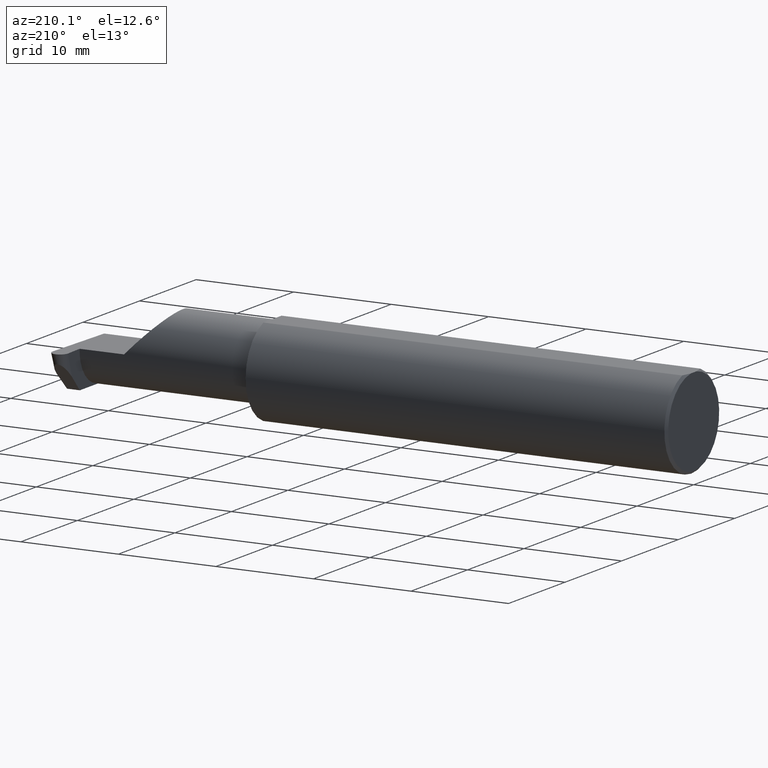
[diagram: clean part render]
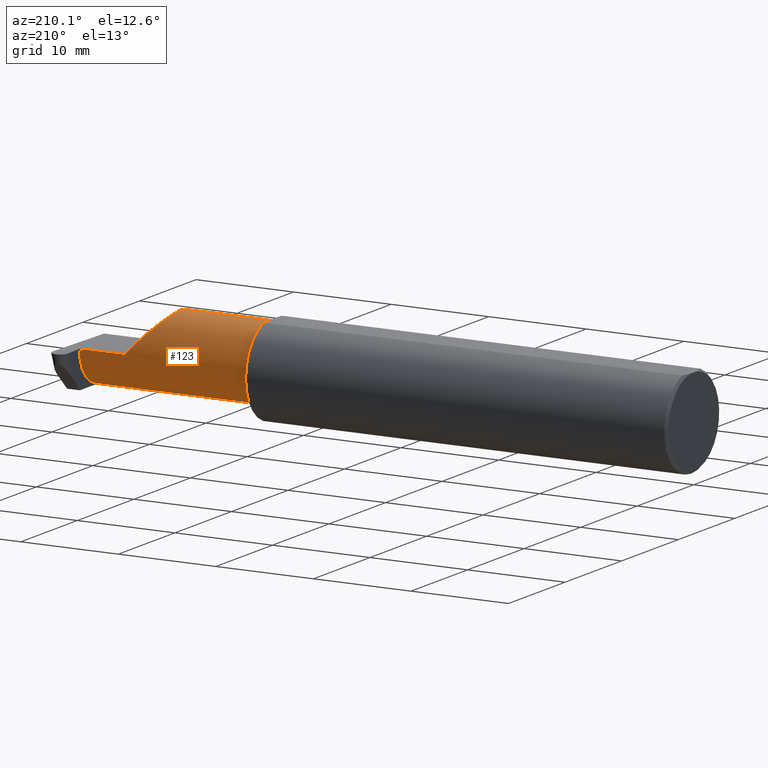
[diagram: same view with one face highlighted and labeled with its STEP entity id]
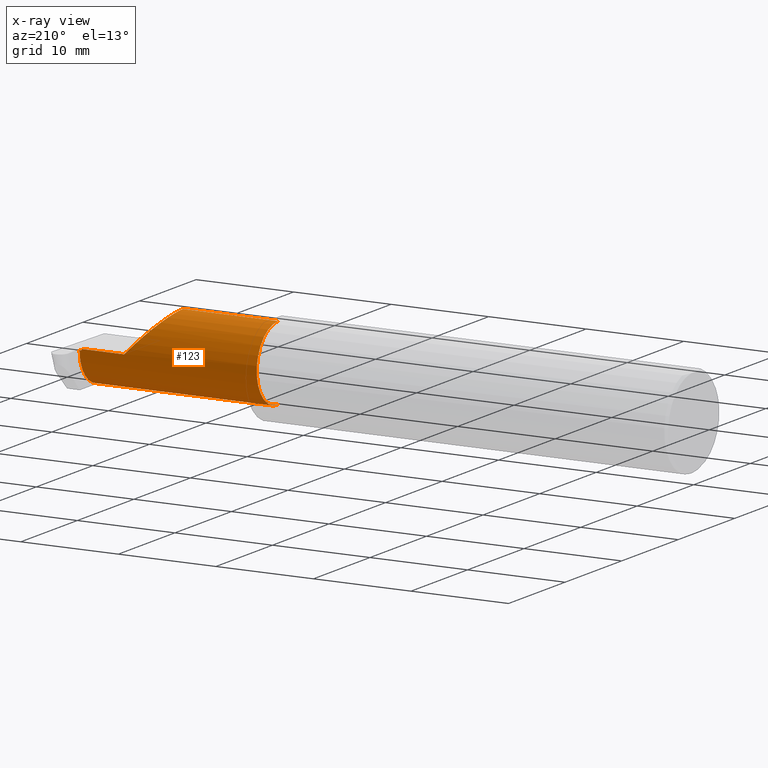
[diagram: x-ray of the same camera — body ghosted, the highlighted face saturated]
A machine part, auxiliary view. The second image highlights one B-rep face of the part: STEP entity #123.
The next image is the same camera in x-ray: the body ghosted, the highlighted face saturated — about 0% of this face is hidden behind the body in this view.
In plain terms, the highlighted cylindrical surface (partial cylindrical patch) has radius 3.81 mm, axis along (-1, -0, -0).
Its self-contained STEP definition (entity closure, byte-faithful):
#2 = VERTEX_POINT ( 'NONE', #801 ) ;
#26 = VERTEX_POINT ( 'NONE', #242 ) ;
#28 = CARTESIAN_POINT ( 'NONE',  ( 2.109999999999998987, -0.08334999999999999354, 0.1499999999999999944 ) ) ;
#55 = DIRECTION ( 'NONE',  ( -1.000000000000000000, -0.000000000000000000, -0.000000000000000000 ) ) ;
#92 = AXIS2_PLACEMENT_3D ( 'NONE', #272, #466, #788 ) ;
#101 = CARTESIAN_POINT ( 'NONE',  ( 2.439954497345508511, 0.06655862405284596051, -0.005234924505382013322 ) ) ;
#106 = CIRCLE ( 'NONE', #167, 0.1499999999999999944 ) ;
#123 = ADVANCED_FACE ( 'NONE', ( #712 ), #530, .T. ) ;
#133 = VECTOR ( 'NONE', #436, 39.37007874015748143 ) ;
#135 = LINE ( 'NONE', #692, #784 ) ;
#167 = AXIS2_PLACEMENT_3D ( 'NONE', #451, #288, #396 ) ;
#199 = CARTESIAN_POINT ( 'NONE',  ( 2.442617647571764028, -0.08334999999999999354, -0.1500000000000000222 ) ) ;
#202 = EDGE_CURVE ( 'NONE', #751, #633, #106, .T. ) ;
#211 = CARTESIAN_POINT ( 'NONE',  ( 2.109999999999998543, 0.004517965644035734120, 0.1499999999999999667 ) ) ;
#213 = ORIENTED_EDGE ( 'NONE', *, *, #666, .F. ) ;
#220 = VERTEX_POINT ( 'NONE', #337 ) ;
#223 = CARTESIAN_POINT ( 'NONE',  ( 1.724999999999999867, -0.08334999999999997966, -0.1499999999999999944 ) ) ;
#234 = CARTESIAN_POINT ( 'NONE',  ( 1.699999999999999956, -0.08334999999999999354, 0.1499999999999999944 ) ) ;
#242 = CARTESIAN_POINT ( 'NONE',  ( 2.260000000000000231, 0.06664999999999998703, 9.797174393178831081E-17 ) ) ;
#244 = ORIENTED_EDGE ( 'NONE', *, *, #785, .T. ) ;
#250 = ORIENTED_EDGE ( 'NONE', *, *, #202, .F. ) ;
#272 = CARTESIAN_POINT ( 'NONE',  ( 1.699999999999999956, -0.08334999999999999354, 0.000000000000000000 ) ) ;
#288 = DIRECTION ( 'NONE',  ( -1.000000000000000000, -0.000000000000000000, -0.000000000000000000 ) ) ;
#292 = CARTESIAN_POINT ( 'NONE',  ( 2.430708765333227994, 0.06661954135095468632, -0.001744974835126431381 ) ) ;
#314 = VECTOR ( 'NONE', #603, 39.37007874015748143 ) ;
#327 = EDGE_CURVE ( 'NONE', #790, #633, #486, .T. ) ;
#332 =( BOUNDED_CURVE ( )  B_SPLINE_CURVE ( 3, ( #464, #711, #766, #101 ),
 .UNSPECIFIED., .F., .F. ) 
 B_SPLINE_CURVE_WITH_KNOTS ( ( 4, 4 ),
 ( 3.159045946109736214, 4.694935687864695950 ),
 .UNSPECIFIED. ) 
 CURVE ( )  GEOMETRIC_REPRESENTATION_ITEM ( )  RATIONAL_B_SPLINE_CURVE ( ( 1.000000000000000000, 0.8128932002257790446, 0.8128932002257790446, 1.000000000000000000 ) ) 
 REPRESENTATION_ITEM ( '' )  );
#336 = CARTESIAN_POINT ( 'NONE',  ( 2.260000000000000231, 0.06664999999999998703, 9.797174393178831081E-17 ) ) ;
#337 = CARTESIAN_POINT ( 'NONE',  ( 2.439954497345508511, 0.06655862405284596051, -0.005234924505382013322 ) ) ;
#338 = ORIENTED_EDGE ( 'NONE', *, *, #509, .F. ) ;
#358 = EDGE_CURVE ( 'NONE', #490, #751, #734, .T. ) ;
#359 = CARTESIAN_POINT ( 'NONE',  ( 2.430739223982273156, 0.06664999999999991764, 0.000000000000000000 ) ) ;
#374 = LINE ( 'NONE', #385, #133 ) ;
#385 = CARTESIAN_POINT ( 'NONE',  ( 1.699999999999999956, 0.06664999999999998703, 9.797174393178831081E-17 ) ) ;
#396 = DIRECTION ( 'NONE',  ( 0.000000000000000000, 0.000000000000000000, 1.000000000000000000 ) ) ;
#416 = CARTESIAN_POINT ( 'NONE',  ( 2.430678306684182832, 0.06658908270190945500, -0.003489949670252863196 ) ) ;
#426 = ORIENTED_EDGE ( 'NONE', *, *, #327, .T. ) ;
#433 = CARTESIAN_POINT ( 'NONE',  ( 2.430739223982273156, 0.06664999999999991764, 0.000000000000000000 ) ) ;
#436 = DIRECTION ( 'NONE',  ( 1.000000000000000000, 0.000000000000000000, 0.000000000000000000 ) ) ;
#440 = EDGE_CURVE ( 'NONE', #220, #2, #135, .T. ) ;
#451 = CARTESIAN_POINT ( 'NONE',  ( 1.724999999999999867, -0.08334999999999999354, 0.000000000000000000 ) ) ;
#464 = CARTESIAN_POINT ( 'NONE',  ( 2.442617647571764028, -0.08334999999999999354, -0.1500000000000000222 ) ) ;
#466 = DIRECTION ( 'NONE',  ( -1.000000000000000000, -0.000000000000000000, -0.000000000000000000 ) ) ;
#467 = B_SPLINE_CURVE_WITH_KNOTS ( 'NONE', 3,
 ( #721, #416, #292, #359 ),
 .UNSPECIFIED., .F., .F.,
 ( 4, 4 ),
 ( 0.000000000000000000, 1.000000000000000000 ),
 .UNSPECIFIED. ) ;
#471 = VERTEX_POINT ( 'NONE', #433 ) ;
#486 = LINE ( 'NONE', #549, #314 ) ;
#490 = VERTEX_POINT ( 'NONE', #500 ) ;
#500 = CARTESIAN_POINT ( 'NONE',  ( 2.109999999999998987, -0.08334999999999999354, 0.1499999999999999944 ) ) ;
#509 = EDGE_CURVE ( 'NONE', #790, #220, #332, .T. ) ;
#530 = CYLINDRICAL_SURFACE ( 'NONE', #92, 0.1499999999999999944 ) ;
#544 = ORIENTED_EDGE ( 'NONE', *, *, #588, .T. ) ;
#549 = CARTESIAN_POINT ( 'NONE',  ( 1.699999999999999956, -0.08334999999999997966, -0.1499999999999999944 ) ) ;
#562 = ORIENTED_EDGE ( 'NONE', *, *, #440, .F. ) ;
#588 = EDGE_CURVE ( 'NONE', #490, #26, #609, .T. ) ;
#602 = EDGE_LOOP ( 'NONE', ( #338, #426, #250, #627, #544, #244, #213, #562 ) ) ;
#603 = DIRECTION ( 'NONE',  ( -1.000000000000000000, -0.000000000000000000, -0.000000000000000000 ) ) ;
#609 =( BOUNDED_CURVE ( )  B_SPLINE_CURVE ( 3, ( #28, #211, #652, #336 ),
 .UNSPECIFIED., .F., .F. ) 
 B_SPLINE_CURVE_WITH_KNOTS ( ( 4, 4 ),
 ( 0.000000000000000000, 1.570796326794896336 ),
 .UNSPECIFIED. ) 
 CURVE ( )  GEOMETRIC_REPRESENTATION_ITEM ( )  RATIONAL_B_SPLINE_CURVE ( ( 1.000000000000000000, 0.8047378541243650485, 0.8047378541243650485, 1.000000000000000000 ) ) 
 REPRESENTATION_ITEM ( '' )  );
#627 = ORIENTED_EDGE ( 'NONE', *, *, #358, .F. ) ;
#633 = VERTEX_POINT ( 'NONE', #223 ) ;
#652 = CARTESIAN_POINT ( 'NONE',  ( 2.172132034355963359, 0.06664999999999998703, 0.08786796564403573373 ) ) ;
#666 = EDGE_CURVE ( 'NONE', #2, #471, #467, .T. ) ;
#692 = CARTESIAN_POINT ( 'NONE',  ( 1.699999999999998845, 0.06655862405285332961, -0.005234924505691121964 ) ) ;
#694 = DIRECTION ( 'NONE',  ( -1.000000000000000000, -0.000000000000000000, -0.000000000000000000 ) ) ;
#711 = CARTESIAN_POINT ( 'NONE',  ( 2.442590694315768474, 0.002105059811798063937, -0.1500000000000000222 ) ) ;
#712 = FACE_OUTER_BOUND ( 'NONE', #602, .T. ) ;
#721 = CARTESIAN_POINT ( 'NONE',  ( 2.430647848035137226, 0.06655862405286420980, -0.005234924505379291541 ) ) ;
#734 = LINE ( 'NONE', #234, #767 ) ;
#751 = VERTEX_POINT ( 'NONE', #789 ) ;
#766 = CARTESIAN_POINT ( 'NONE',  ( 2.441498648347320888, 0.06357628547474593328, -0.09063792740366179157 ) ) ;
#767 = VECTOR ( 'NONE', #55, 39.37007874015748143 ) ;
#784 = VECTOR ( 'NONE', #694, 39.37007874015748143 ) ;
#785 = EDGE_CURVE ( 'NONE', #26, #471, #374, .T. ) ;
#788 = DIRECTION ( 'NONE',  ( 0.000000000000000000, 0.000000000000000000, 1.000000000000000000 ) ) ;
#789 = CARTESIAN_POINT ( 'NONE',  ( 1.724999999999999867, -0.08334999999999999354, 0.1499999999999999944 ) ) ;
#790 = VERTEX_POINT ( 'NONE', #199 ) ;
#801 = CARTESIAN_POINT ( 'NONE',  ( 2.430647848035137226, 0.06655862405286420980, -0.005234924505379291541 ) ) ;